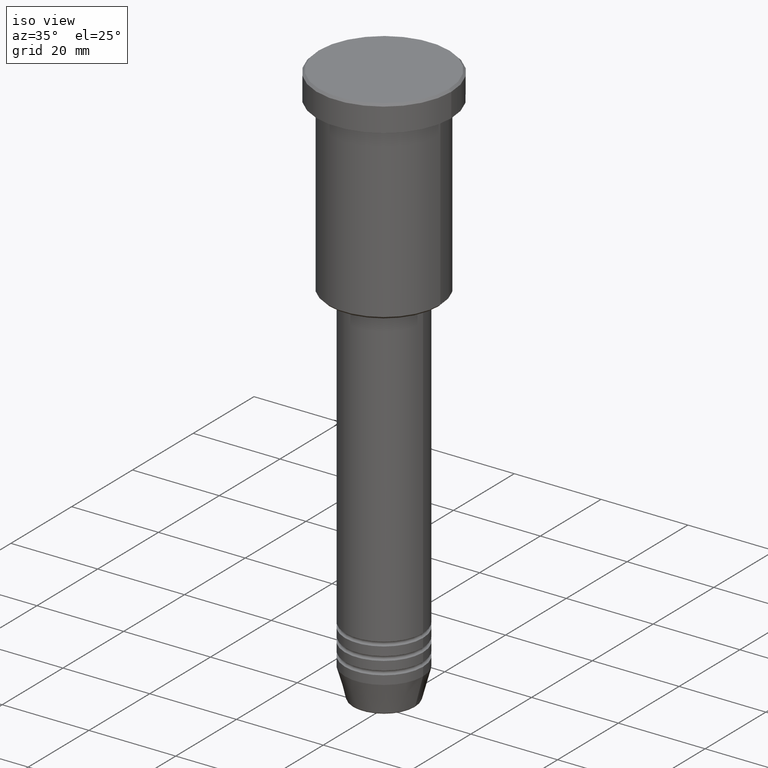
[diagram: clean part render]
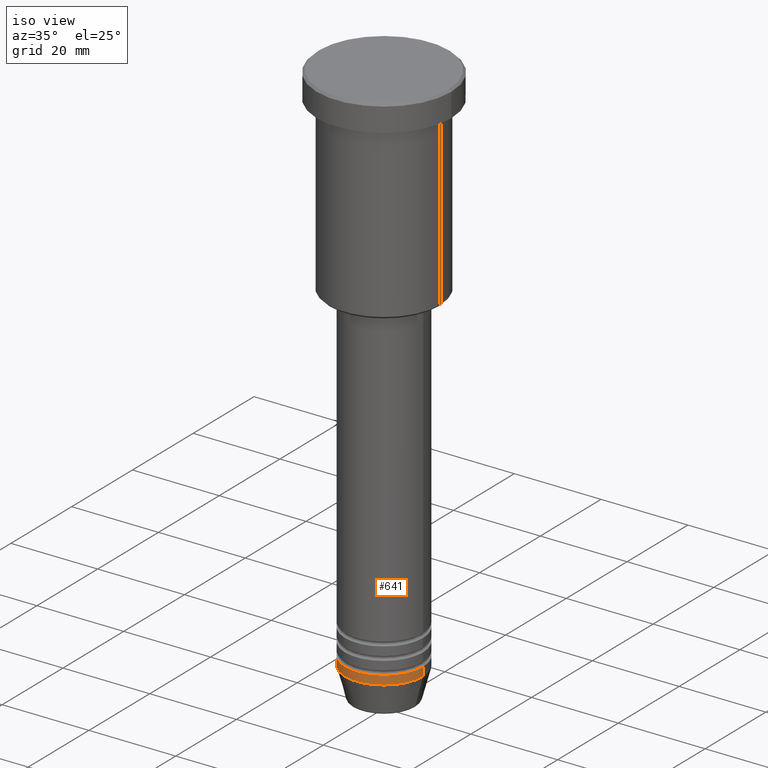
[diagram: same view with one face highlighted and labeled with its STEP entity id]
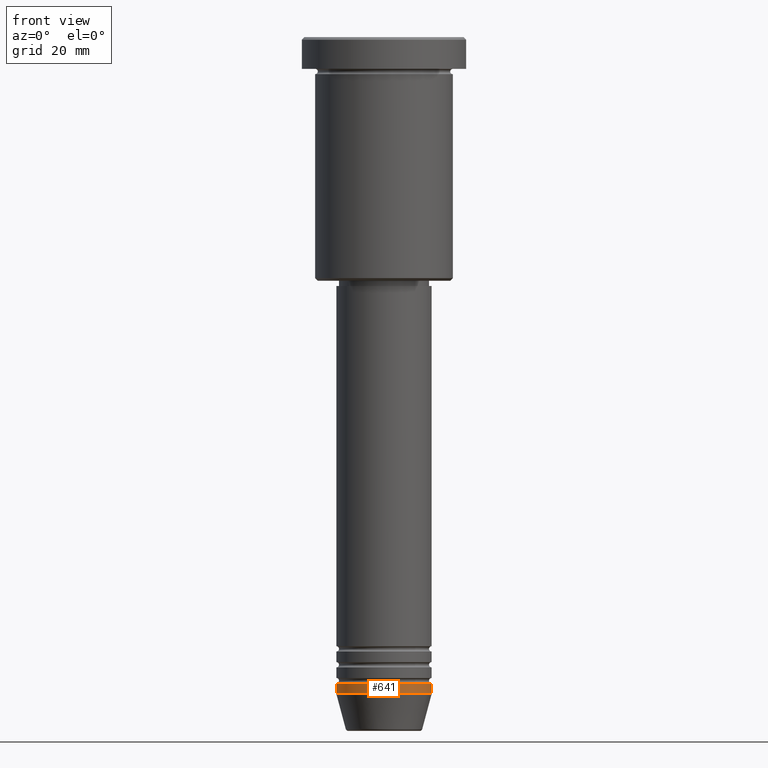
[diagram: same view with one face highlighted and labeled with its STEP entity id]
A machine part, iso view. The second image highlights one B-rep face of the part: STEP entity #641.
A second angle (front view) of the same face is appended — the face is thin or edge-on in the first view.
In plain terms, the highlighted cylindrical surface (partial cylindrical patch) has radius 9 mm, axis along (-0, -0, 1).
Its self-contained STEP definition (entity closure, byte-faithful):
#60 = CYLINDRICAL_SURFACE ( 'NONE', #740, 9.000000000000000000 ) ;
#67 = AXIS2_PLACEMENT_3D ( 'NONE', #1124, #456, #461 ) ;
#95 = CARTESIAN_POINT ( 'NONE',  ( 9.000000000000000000, 0.000000000000000000, 0.000000000000000000 ) ) ;
#198 = VERTEX_POINT ( 'NONE', #908 ) ;
#199 = ORIENTED_EDGE ( 'NONE', *, *, #865, .T. ) ;
#282 = ORIENTED_EDGE ( 'NONE', *, *, #899, .F. ) ;
#337 = AXIS2_PLACEMENT_3D ( 'NONE', #988, #1163, #1084 ) ;
#339 = VECTOR ( 'NONE', #1025, 1000.000000000000000 ) ;
#350 = DIRECTION ( 'NONE',  ( -0.000000000000000000, -0.000000000000000000, 1.000000000000000000 ) ) ;
#357 = VERTEX_POINT ( 'NONE', #390 ) ;
#390 = CARTESIAN_POINT ( 'NONE',  ( 9.000000000000000000, 0.000000000000000000, -124.0000000000000000 ) ) ;
#409 = CARTESIAN_POINT ( 'NONE',  ( -9.000000000000000000, 1.102182119232617714E-15, 0.000000000000000000 ) ) ;
#443 = CARTESIAN_POINT ( 'NONE',  ( 0.000000000000000000, 0.000000000000000000, 0.000000000000000000 ) ) ;
#450 = VERTEX_POINT ( 'NONE', #1099 ) ;
#456 = DIRECTION ( 'NONE',  ( -0.000000000000000000, -0.000000000000000000, 1.000000000000000000 ) ) ;
#461 = DIRECTION ( 'NONE',  ( 1.000000000000000000, 0.000000000000000000, 0.000000000000000000 ) ) ;
#489 = CARTESIAN_POINT ( 'NONE',  ( -9.000000000000000000, 1.102182119232617714E-15, -124.0000000000000000 ) ) ;
#491 = ORIENTED_EDGE ( 'NONE', *, *, #1032, .F. ) ;
#552 = LINE ( 'NONE', #95, #339 ) ;
#593 = ORIENTED_EDGE ( 'NONE', *, *, #751, .T. ) ;
#616 = FACE_OUTER_BOUND ( 'NONE', #798, .T. ) ;
#641 = ADVANCED_FACE ( 'NONE', ( #616 ), #60, .T. ) ;
#740 = AXIS2_PLACEMENT_3D ( 'NONE', #443, #350, #1181 ) ;
#751 = EDGE_CURVE ( 'NONE', #1042, #357, #860, .T. ) ;
#781 = LINE ( 'NONE', #409, #797 ) ;
#797 = VECTOR ( 'NONE', #880, 1000.000000000000000 ) ;
#798 = EDGE_LOOP ( 'NONE', ( #491, #593, #199, #282 ) ) ;
#860 = CIRCLE ( 'NONE', #337, 9.000000000000000000 ) ;
#865 = EDGE_CURVE ( 'NONE', #357, #450, #552, .T. ) ;
#880 = DIRECTION ( 'NONE',  ( -0.000000000000000000, -0.000000000000000000, 1.000000000000000000 ) ) ;
#899 = EDGE_CURVE ( 'NONE', #198, #450, #1102, .T. ) ;
#908 = CARTESIAN_POINT ( 'NONE',  ( -9.000000000000000000, 1.102182119232617714E-15, -122.0000000000000000 ) ) ;
#988 = CARTESIAN_POINT ( 'NONE',  ( 0.000000000000000000, 0.000000000000000000, -124.0000000000000000 ) ) ;
#1025 = DIRECTION ( 'NONE',  ( -0.000000000000000000, -0.000000000000000000, 1.000000000000000000 ) ) ;
#1032 = EDGE_CURVE ( 'NONE', #1042, #198, #781, .T. ) ;
#1042 = VERTEX_POINT ( 'NONE', #489 ) ;
#1084 = DIRECTION ( 'NONE',  ( 1.000000000000000000, 0.000000000000000000, 0.000000000000000000 ) ) ;
#1099 = CARTESIAN_POINT ( 'NONE',  ( 9.000000000000000000, 0.000000000000000000, -122.0000000000000000 ) ) ;
#1102 = CIRCLE ( 'NONE', #67, 9.000000000000000000 ) ;
#1124 = CARTESIAN_POINT ( 'NONE',  ( 0.000000000000000000, 0.000000000000000000, -122.0000000000000000 ) ) ;
#1163 = DIRECTION ( 'NONE',  ( -0.000000000000000000, -0.000000000000000000, 1.000000000000000000 ) ) ;
#1181 = DIRECTION ( 'NONE',  ( 1.000000000000000000, 0.000000000000000000, 0.000000000000000000 ) ) ;